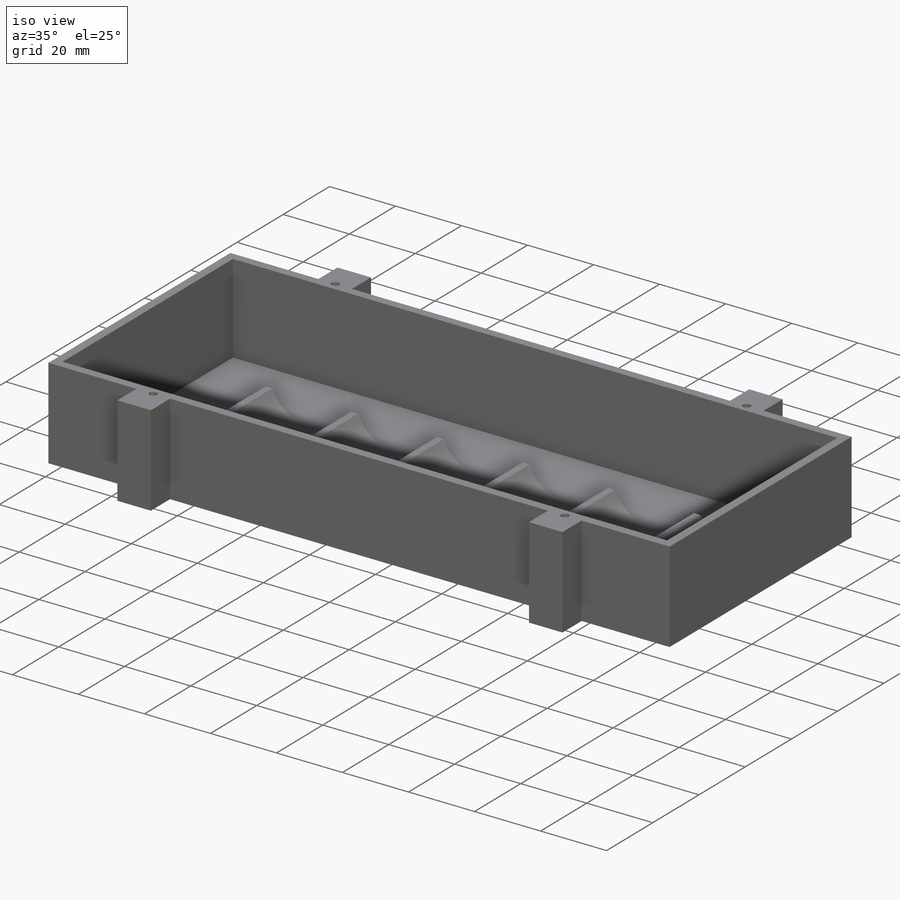
[diagram: iso view]
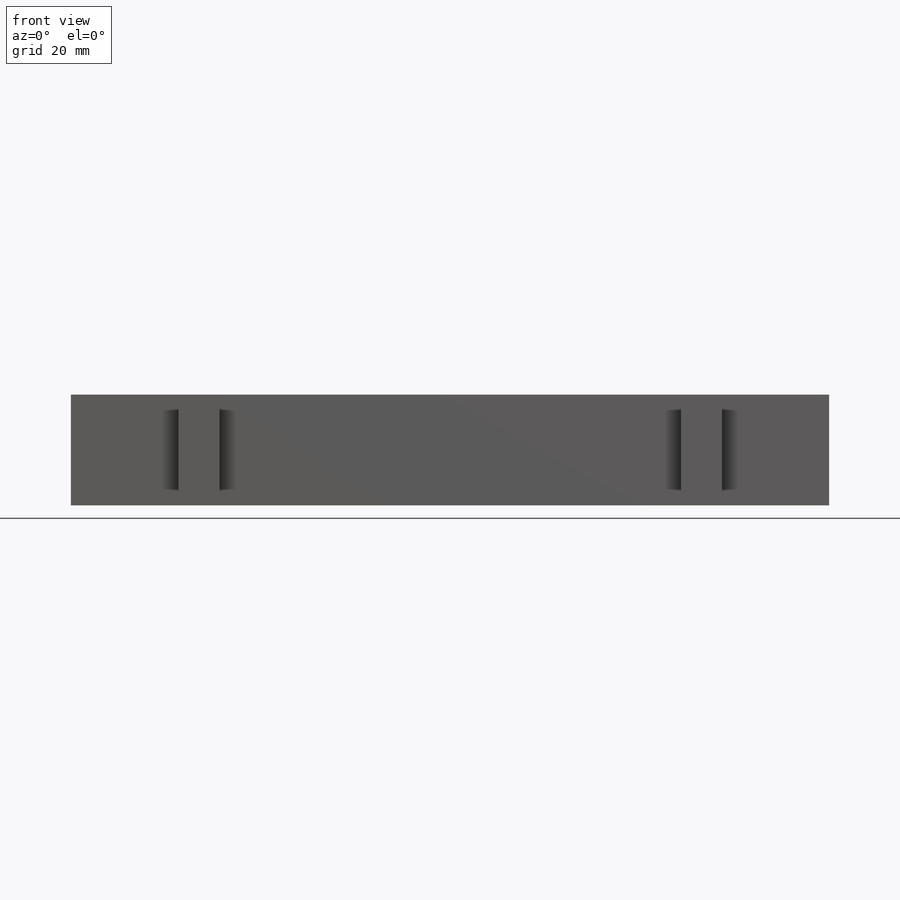
[diagram: front view]
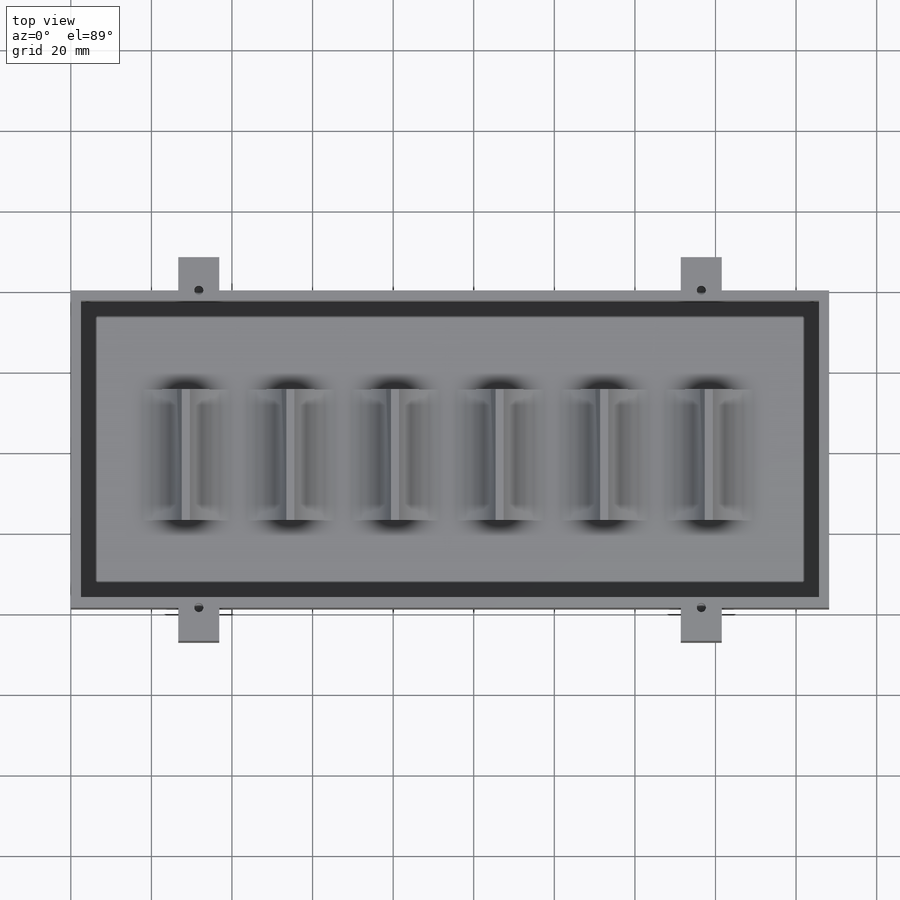
[diagram: top view]
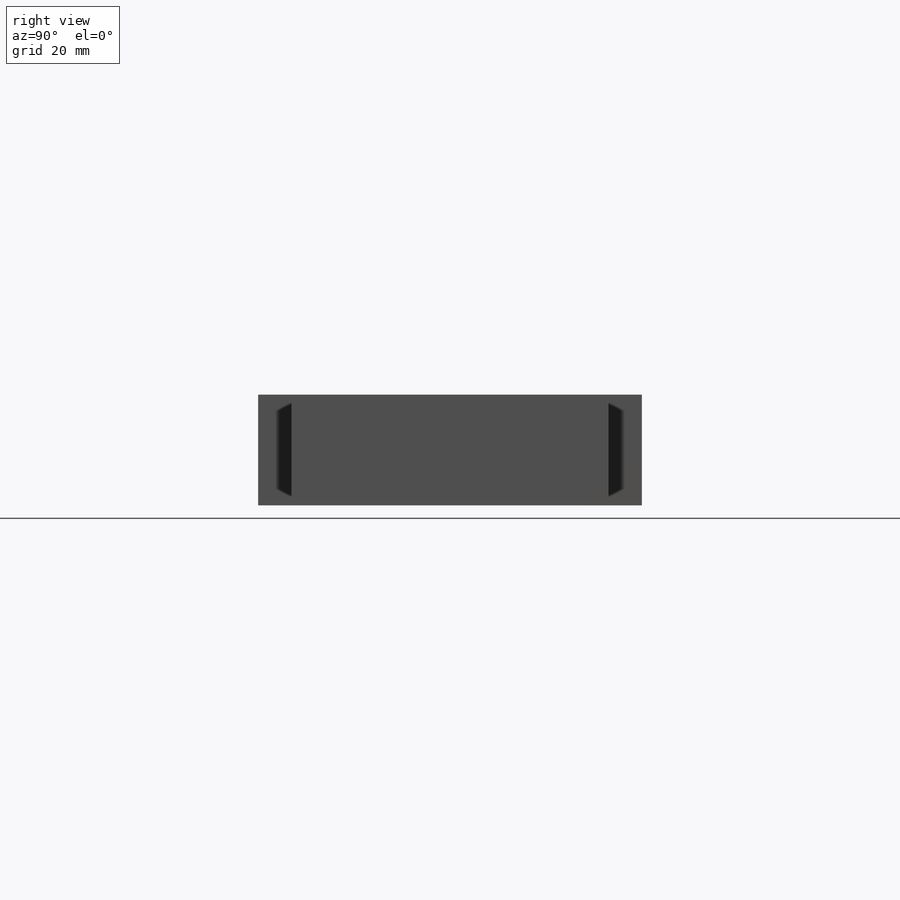
[diagram: right view]
SOLIDWORKS PART (.sldprt)
format: sldprt  version: not decoded by parser v0  size: 409,088 bytes
history: native  units: mm
features: sketch x10, extrude x4, thread x4, material x1, hole x1, cut_extrude x1 (+11 scaffold rows collapsed)
feature tree (32):
  scaffold x11  (default folders/planes/origin — collapsed)
  material  "ABS"
  sketch  "Sketch1"  dims[c1.D1=76.2mm c1.D2=183.134mm c1.D4=9.525mm c1.D5=9.525mm c1.D6=66.04mm c2.D1=73.66mm c2.D4=10.795mm c2.D5=95.25mm c2.D3=2.54mm]
  extrude  "Boss-Extrude1"  Depth=0.508mm
  extrude  "Boss-Extrude2"  [1 undecoded]
  sketch  "Sketch1<3>"  dims[D1=27.0mm]
  sketch  "Sketch2"  dims[D1=26.0mm D2=15.0mm]
  sketch  "Sketch5"  dims[c1.D2=11.0mm c1.D1=12.0mm c1.D3=7.0mm c2.D1=1.0mm c2.D6=25.9588mm c2.D4=6.0 c2.D5=6.0]
  extrude  "Boss-Extrude3"  Depth=32.5mm
  extrude  "Boss-Extrude4"  [1 undecoded]
  sketch  "Sketch1<4>"
  sketch  "Sketch6"  dims[c1.D1=2.2606mm c1.D3=2.2606mm c1.D2=31.75mm c1.D4=31.75mm c2.D1=31.75mm c2.D2=31.75mm]
  hole  "#4-40 Tapped Hole2"  Diameter=2.2606mm Depth=7.62mm
  sketch  "Sketch10"
  sketch  "Sketch9"  dims[hole-wizard template sketch: 50 standard entries collapsed; hole parameters above]
  thread  "Hole Thread2"  Diameter=5.588mm  [1 undecoded]
  thread  "Hole Thread3"  Diameter=5.588mm  [1 undecoded]
  thread  "Hole Thread4"  Diameter=5.588mm  [1 undecoded]
  thread  "Hole Thread5"  Diameter=5.588mm  [1 undecoded]
  sketch  "midpoint"
  sketch  "Sketch11"  dims[D1=5.08mm D2=5.08mm D3=2.54mm D4=2.54mm D5=5.08mm]
  cut_extrude  "Cut-Extrude1"  [1 undecoded]
decode coverage: 14 of 20 modeling features carry decoded parameters
note: ~ marks probable driven/reference dimensions
note: 7 parameter values undecoded
summary: no parameter record found for 3 features
note: suppression state not decoded; provenance and decode notes live in map.json
